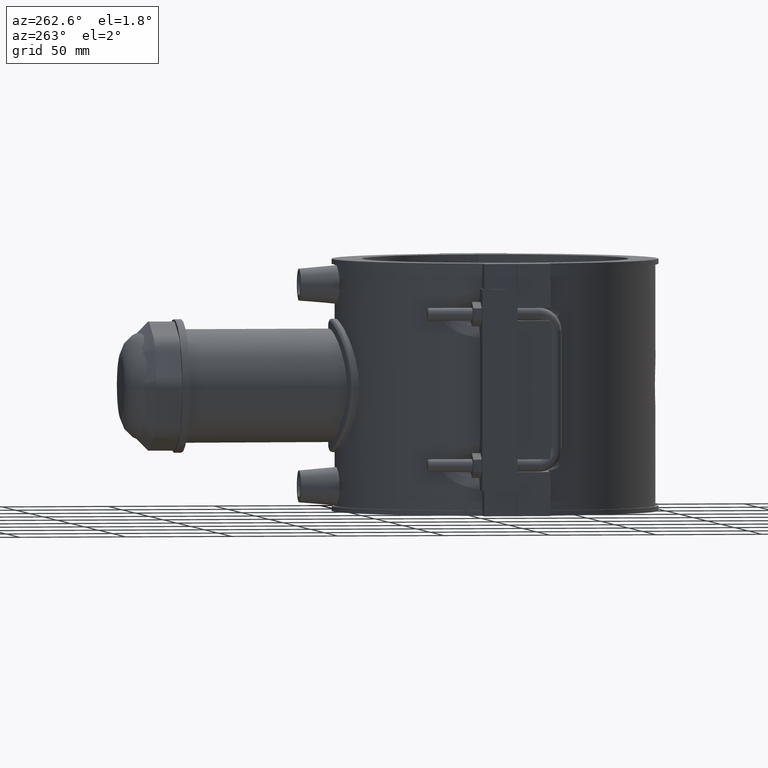
[diagram: clean part render]
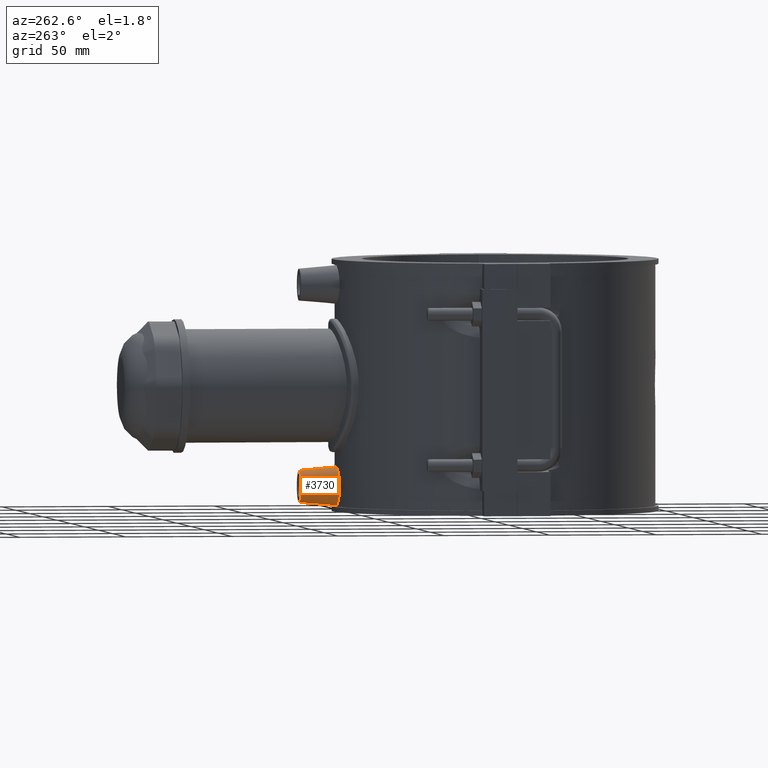
[diagram: same view with one face highlighted and labeled with its STEP entity id]
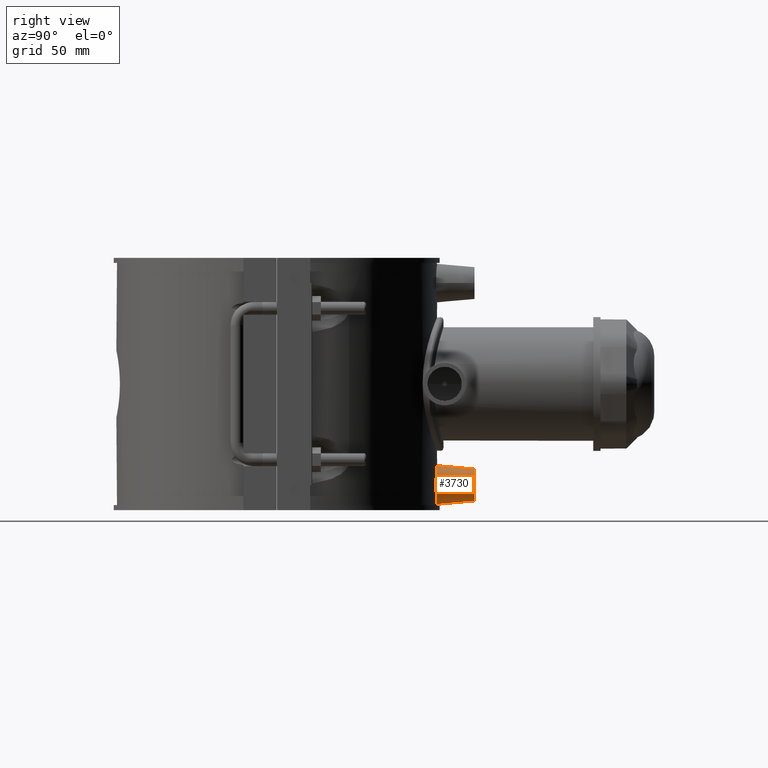
[diagram: same view with one face highlighted and labeled with its STEP entity id]
A machine part, auxiliary view. The second image highlights one B-rep face of the part: STEP entity #3730.
A second angle (right view) of the same face is appended — the face is thin or edge-on in the first view.
In plain terms, the highlighted conical surface has half-angle 5 deg.
Its self-contained STEP definition (entity closure, byte-faithful):
#652=CONICAL_SURFACE('',#4009,7.5,5.);
#854=CIRCLE('',#4008,7.5);
#934=FACE_BOUND('',#1338,.T.);
#1084=FACE_OUTER_BOUND('',#1337,.T.);
#1337=EDGE_LOOP('',(#3062));
#1338=EDGE_LOOP('',(#3063));
#1516=B_SPLINE_CURVE_WITH_KNOTS('',3,(#6600,#6601,#6602,#6603,#6604,#6605,
#6606,#6607,#6608,#6609,#6610,#6611,#6612,#6613,#6614,#6615,#6616,#6617,
#6618,#6619,#6620,#6621,#6622,#6623,#6624,#6625,#6626,#6627,#6628,#6629,
#6630,#6631,#6632,#6633),.UNSPECIFIED.,.T.,.F.,(4,2,2,2,2,2,2,2,2,2,2,2,
2,2,2,2,4),(0.,0.341668696491551,0.683337392983103,1.02458425500419,1.36583111702527,
1.70707797904636,2.04832484106744,2.38999353755899,2.73166223405054,3.0733309305421,
3.41499962703365,3.75624648905473,4.09749335107582,4.4387402130969,4.77998707511798,
5.12165577160954,5.46332446810109),.UNSPECIFIED.);
#1717=VERTEX_POINT('',#6599);
#1815=VERTEX_POINT('',#7346);
#2138=EDGE_CURVE('',#1717,#1717,#1516,.T.);
#2271=EDGE_CURVE('',#1815,#1815,#854,.T.);
#3062=ORIENTED_EDGE('',*,*,#2271,.T.);
#3063=ORIENTED_EDGE('',*,*,#2138,.F.);
#3730=ADVANCED_FACE('',(#1084,#934),#652,.T.);
#4008=AXIS2_PLACEMENT_3D('',#7347,#4711,#4712);
#4009=AXIS2_PLACEMENT_3D('',#7348,#4713,#4714);
#4711=DIRECTION('center_axis',(0.,-1.,0.));
#4712=DIRECTION('ref_axis',(1.,0.,0.));
#4713=DIRECTION('center_axis',(0.,-1.,0.));
#4714=DIRECTION('ref_axis',(1.,0.,0.));
#6599=CARTESIAN_POINT('',(9.0793092533136,74.4484126323906,-47.2));
#6600=CARTESIAN_POINT('Ctrl Pts',(9.0793092533136,74.4484126323906,-47.2));
#6601=CARTESIAN_POINT('Ctrl Pts',(9.0793092533136,74.4484126323906,-46.0611043450282));
#6602=CARTESIAN_POINT('Ctrl Pts',(8.84946113589686,74.4775577133318,-44.8478007545603));
#6603=CARTESIAN_POINT('Ctrl Pts',(7.91818152844378,74.5823166978625,-42.6193985559919));
#6604=CARTESIAN_POINT('Ctrl Pts',(7.21684973308405,74.6563698188581,-41.604185186368));
#6605=CARTESIAN_POINT('Ctrl Pts',(5.60331245542121,74.7947708340694,-40.0044126497905));
#6606=CARTESIAN_POINT('Ctrl Pts',(4.58361091651927,74.8681481668674,-39.3122964536791));
#6607=CARTESIAN_POINT('Ctrl Pts',(2.35073887920452,74.9714820813101,-38.3945491238737));
#6608=CARTESIAN_POINT('Ctrl Pts',(1.13748954007028,75.,-38.1689483882964));
#6609=CARTESIAN_POINT('Ctrl Pts',(-1.13748954007028,75.,-38.1689483882964));
#6610=CARTESIAN_POINT('Ctrl Pts',(-2.35073887920452,74.9714820813101,-38.3945491238737));
#6611=CARTESIAN_POINT('Ctrl Pts',(-4.58361091651926,74.8681481668674,-39.3122964536791));
#6612=CARTESIAN_POINT('Ctrl Pts',(-5.60331245542121,74.7947708340694,-40.0044126497905));
#6613=CARTESIAN_POINT('Ctrl Pts',(-7.21684973308405,74.6563698188581,-41.604185186368));
#6614=CARTESIAN_POINT('Ctrl Pts',(-7.91818152844378,74.5823166978625,-42.6193985559919));
#6615=CARTESIAN_POINT('Ctrl Pts',(-8.84946113589686,74.4775577133318,-44.8478007545603));
#6616=CARTESIAN_POINT('Ctrl Pts',(-9.0793092533136,74.4484126323906,-46.0611043450282));
#6617=CARTESIAN_POINT('Ctrl Pts',(-9.0793092533136,74.4484126323906,-48.3388956549719));
#6618=CARTESIAN_POINT('Ctrl Pts',(-8.84946113589685,74.4775577133318,-49.5521992454398));
#6619=CARTESIAN_POINT('Ctrl Pts',(-7.91818152844378,74.5823166978625,-51.7806014440082));
#6620=CARTESIAN_POINT('Ctrl Pts',(-7.21684973308406,74.6563698188581,-52.795814813632));
#6621=CARTESIAN_POINT('Ctrl Pts',(-5.60331245542121,74.7947708340694,-54.3955873502096));
#6622=CARTESIAN_POINT('Ctrl Pts',(-4.58361091651926,74.8681481668674,-55.0877035463209));
#6623=CARTESIAN_POINT('Ctrl Pts',(-2.35073887920452,74.9714820813101,-56.0054508761263));
#6624=CARTESIAN_POINT('Ctrl Pts',(-1.13748954007028,75.,-56.2310516117037));
#6625=CARTESIAN_POINT('Ctrl Pts',(1.13748954007028,75.,-56.2310516117037));
#6626=CARTESIAN_POINT('Ctrl Pts',(2.35073887920452,74.9714820813101,-56.0054508761263));
#6627=CARTESIAN_POINT('Ctrl Pts',(4.58361091651926,74.8681481668674,-55.0877035463209));
#6628=CARTESIAN_POINT('Ctrl Pts',(5.60331245542121,74.7947708340694,-54.3955873502096));
#6629=CARTESIAN_POINT('Ctrl Pts',(7.21684973308405,74.6563698188581,-52.795814813632));
#6630=CARTESIAN_POINT('Ctrl Pts',(7.91818152844378,74.5823166978625,-51.7806014440082));
#6631=CARTESIAN_POINT('Ctrl Pts',(8.84946113589685,74.4775577133318,-49.5521992454398));
#6632=CARTESIAN_POINT('Ctrl Pts',(9.0793092533136,74.4484126323906,-48.3388956549719));
#6633=CARTESIAN_POINT('Ctrl Pts',(9.0793092533136,74.4484126323906,-47.2));
#7346=CARTESIAN_POINT('',(-7.5,92.5,-47.2));
#7347=CARTESIAN_POINT('Origin',(0.,92.5,-47.2));
#7348=CARTESIAN_POINT('Origin',(0.,92.5,-47.2));